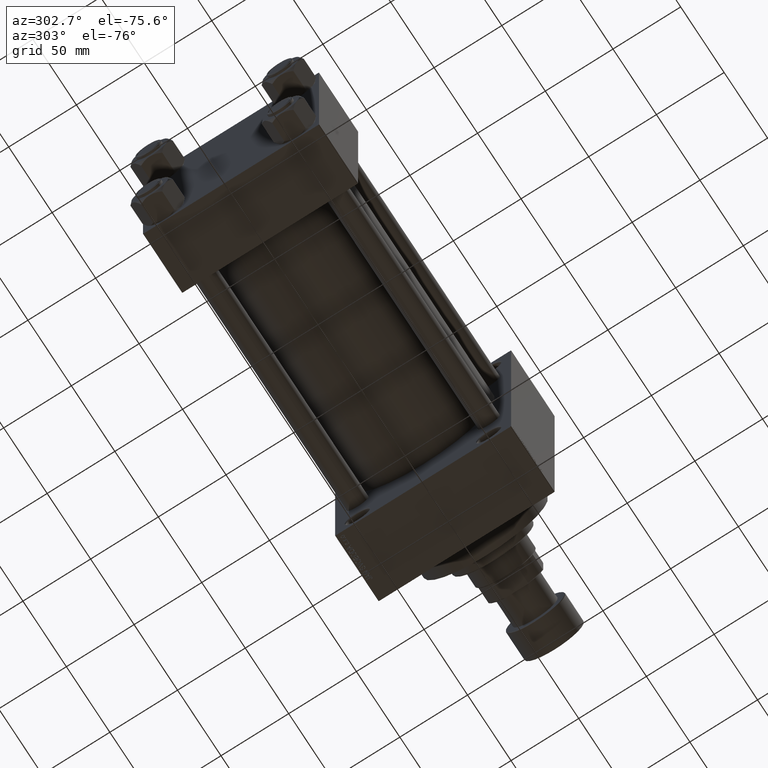
[diagram: clean part render]
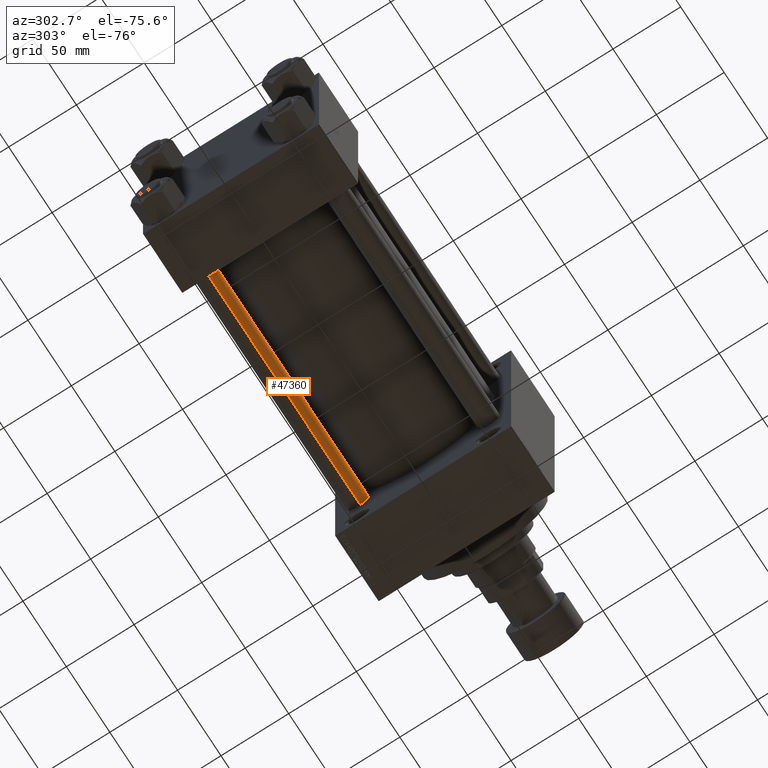
[diagram: same view with one face highlighted and labeled with its STEP entity id]
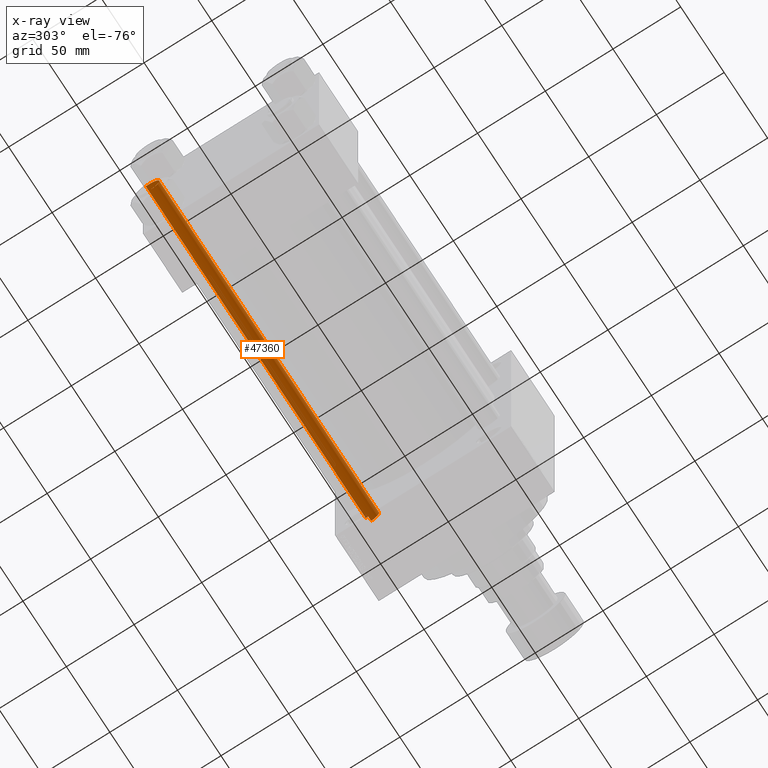
[diagram: x-ray of the same camera — body ghosted, the highlighted face saturated]
A machine part, auxiliary view. The second image highlights one B-rep face of the part: STEP entity #47360.
The next image is the same camera in x-ray: the body ghosted, the highlighted face saturated — about 0% of this face is hidden behind the body in this view.
In plain terms, the highlighted cylindrical surface (edge-blend (fillet) strip) has radius 8 mm, axis along (1, -0, 0).
Its self-contained STEP definition (entity closure, byte-faithful):
#1102 = EDGE_CURVE ( 'NONE', #17862, #26603, #2438, .T. ) ;
#2438 = LINE ( 'NONE', #31756, #12775 ) ;
#3775 = DIRECTION ( 'NONE',  ( -1.000000000000000000, 0.000000000000000000, 0.000000000000000000 ) ) ;
#4811 = ORIENTED_EDGE ( 'NONE', *, *, #28473, .T. ) ;
#5350 = CIRCLE ( 'NONE', #31115, 8.000000000000000000 ) ;
#5366 = AXIS2_PLACEMENT_3D ( 'NONE', #44831, #18903, #3775 ) ;
#8149 = CYLINDRICAL_SURFACE ( 'NONE', #5366, 8.000000000000000000 ) ;
#10231 = DIRECTION ( 'NONE',  ( 0.000000000000000000, 0.000000000000000000, -1.000000000000000000 ) ) ;
#12775 = VECTOR ( 'NONE', #13179, 1000.000000000000000 ) ;
#13179 = DIRECTION ( 'NONE',  ( -0.000000000000000000, -0.000000000000000000, -1.000000000000000000 ) ) ;
#14382 = CARTESIAN_POINT ( 'NONE',  ( 8.000000000000000000, 9.797174393178825657E-16, 254.0000000000000000 ) ) ;
#15489 = CIRCLE ( 'NONE', #23301, 8.000000000000000000 ) ;
#17795 = DIRECTION ( 'NONE',  ( 1.000000000000000000, 0.000000000000000000, 0.000000000000000000 ) ) ;
#17862 = VERTEX_POINT ( 'NONE', #43606 ) ;
#18903 = DIRECTION ( 'NONE',  ( -0.000000000000000000, -0.000000000000000000, -1.000000000000000000 ) ) ;
#21914 = CARTESIAN_POINT ( 'NONE',  ( -8.000000000000000000, 0.000000000000000000, 0.5000000000000004441 ) ) ;
#23301 = AXIS2_PLACEMENT_3D ( 'NONE', #45799, #42141, #31590 ) ;
#24236 = ORIENTED_EDGE ( 'NONE', *, *, #1102, .T. ) ;
#24412 = CARTESIAN_POINT ( 'NONE',  ( 8.000000000000000000, 9.797174393178825657E-16, 253.5000000000000568 ) ) ;
#26603 = VERTEX_POINT ( 'NONE', #21914 ) ;
#28473 = EDGE_CURVE ( 'NONE', #32170, #17862, #5350, .T. ) ;
#31115 = AXIS2_PLACEMENT_3D ( 'NONE', #47623, #10231, #17795 ) ;
#31590 = DIRECTION ( 'NONE',  ( 1.000000000000000000, 0.000000000000000000, 0.000000000000000000 ) ) ;
#31756 = CARTESIAN_POINT ( 'NONE',  ( -8.000000000000000000, 0.000000000000000000, 254.0000000000000000 ) ) ;
#32087 = EDGE_CURVE ( 'NONE', #32170, #32094, #42559, .T. ) ;
#32094 = VERTEX_POINT ( 'NONE', #47646 ) ;
#32170 = VERTEX_POINT ( 'NONE', #24412 ) ;
#34525 = ORIENTED_EDGE ( 'NONE', *, *, #47539, .T. ) ;
#35694 = DIRECTION ( 'NONE',  ( -0.000000000000000000, -0.000000000000000000, -1.000000000000000000 ) ) ;
#35902 = VECTOR ( 'NONE', #35694, 1000.000000000000000 ) ;
#37429 = ORIENTED_EDGE ( 'NONE', *, *, #32087, .F. ) ;
#41418 = FACE_OUTER_BOUND ( 'NONE', #43225, .T. ) ;
#42141 = DIRECTION ( 'NONE',  ( -0.000000000000000000, -0.000000000000000000, 1.000000000000000000 ) ) ;
#42559 = LINE ( 'NONE', #14382, #35902 ) ;
#43225 = EDGE_LOOP ( 'NONE', ( #37429, #4811, #24236, #34525 ) ) ;
#43606 = CARTESIAN_POINT ( 'NONE',  ( -8.000000000000000000, 0.000000000000000000, 253.5000000000000568 ) ) ;
#44831 = CARTESIAN_POINT ( 'NONE',  ( 0.000000000000000000, 0.000000000000000000, 254.0000000000000000 ) ) ;
#45799 = CARTESIAN_POINT ( 'NONE',  ( 0.000000000000000000, 0.000000000000000000, 0.5000000000000004441 ) ) ;
#47360 = ADVANCED_FACE ( 'NONE', ( #41418 ), #8149, .T. ) ;
#47539 = EDGE_CURVE ( 'NONE', #26603, #32094, #15489, .T. ) ;
#47623 = CARTESIAN_POINT ( 'NONE',  ( 0.000000000000000000, 0.000000000000000000, 253.5000000000000568 ) ) ;
#47646 = CARTESIAN_POINT ( 'NONE',  ( 8.000000000000000000, 9.797174393178825657E-16, 0.5000000000000004441 ) ) ;